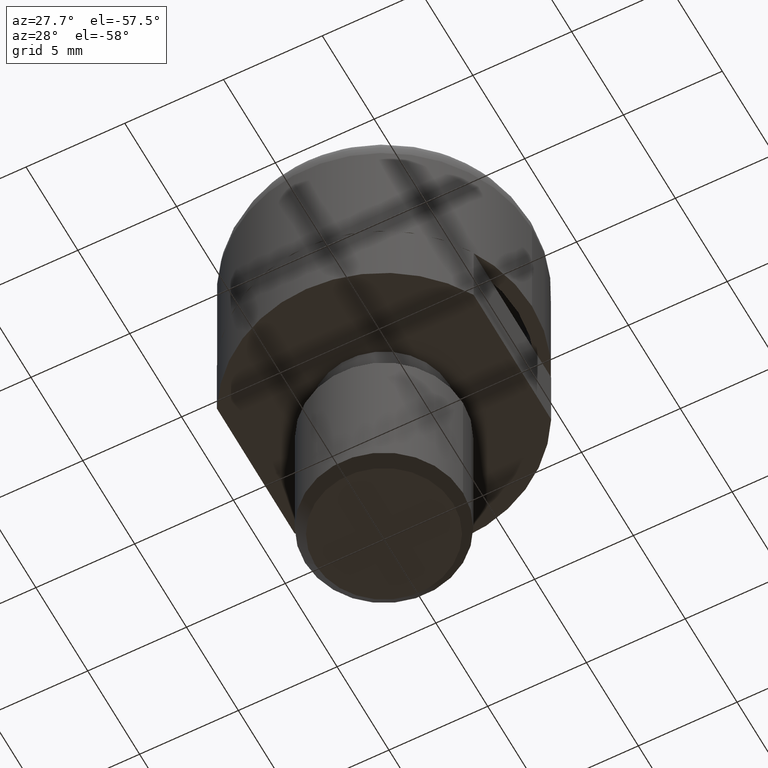
[diagram: clean part render]
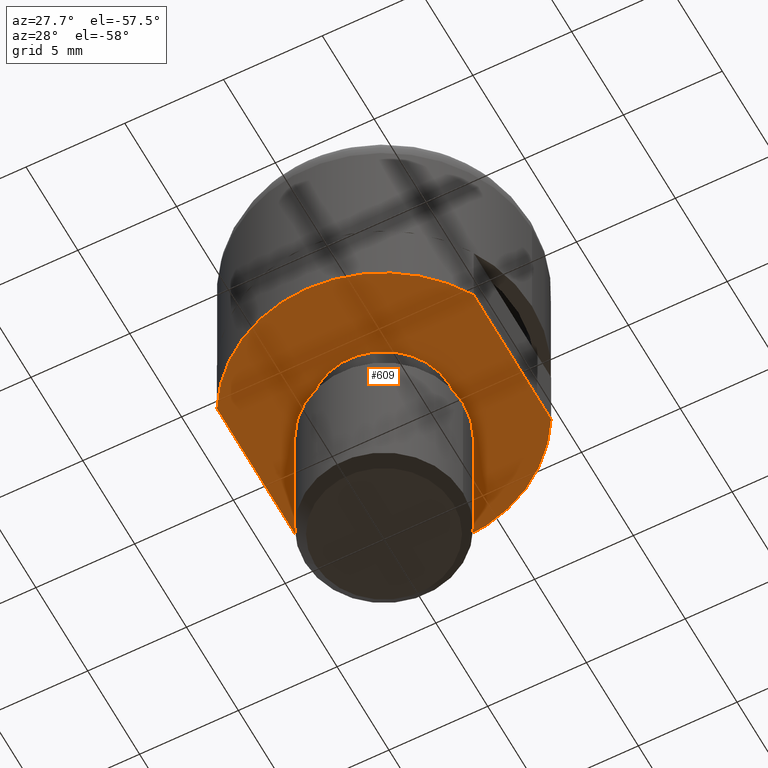
[diagram: same view with one face highlighted and labeled with its STEP entity id]
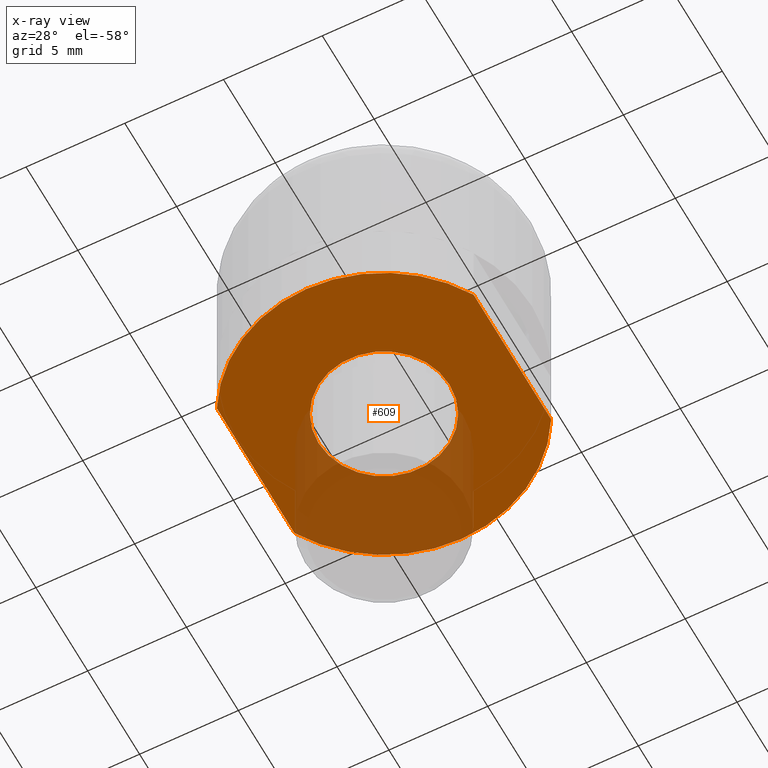
[diagram: x-ray of the same camera — body ghosted, the highlighted face saturated]
A machine part, auxiliary view. The second image highlights one B-rep face of the part: STEP entity #609.
The next image is the same camera in x-ray: the body ghosted, the highlighted face saturated — about 30% of this face is hidden behind the body in this view.
In plain terms, the highlighted planar face has unit normal (0, 0, 1).
Its self-contained STEP definition (entity closure, byte-faithful):
#7 = ORIENTED_EDGE ( 'NONE', *, *, #732, .F. ) ;
#10 = FACE_BOUND ( 'NONE', #520, .T. ) ;
#21 = CARTESIAN_POINT ( 'NONE',  ( 0.0000000000000000000, 0.0000000000000000000, -3.500000000000000000 ) ) ;
#22 = VECTOR ( 'NONE', #711, 1000.000000000000000 ) ;
#23 = EDGE_LOOP ( 'NONE', ( #506, #886, #7, #740 ) ) ;
#37 = VERTEX_POINT ( 'NONE', #801 ) ;
#68 = EDGE_CURVE ( 'NONE', #208, #514, #271, .T. ) ;
#77 = ORIENTED_EDGE ( 'NONE', *, *, #817, .F. ) ;
#115 = DIRECTION ( 'NONE',  ( -0.0000000000000000000, -0.0000000000000000000, -1.000000000000000000 ) ) ;
#179 = CIRCLE ( 'NONE', #672, 3.323500000001154800 ) ;
#208 = VERTEX_POINT ( 'NONE', #306 ) ;
#218 = LINE ( 'NONE', #424, #22 ) ;
#246 = CIRCLE ( 'NONE', #363, 3.323500000001154800 ) ;
#255 = CARTESIAN_POINT ( 'NONE',  ( 0.0000000000000000000, 0.0000000000000000000, -3.500000000000000000 ) ) ;
#267 = EDGE_CURVE ( 'NONE', #360, #291, #827, .T. ) ;
#271 = CIRCLE ( 'NONE', #690, 7.500000000000000000 ) ;
#291 = VERTEX_POINT ( 'NONE', #482 ) ;
#306 = CARTESIAN_POINT ( 'NONE',  ( 6.500000000000000000, -3.741657386773955100, -3.499999999999950300 ) ) ;
#313 = ORIENTED_EDGE ( 'NONE', *, *, #364, .F. ) ;
#322 = AXIS2_PLACEMENT_3D ( 'NONE', #760, #642, #929 ) ;
#333 = DIRECTION ( 'NONE',  ( 1.000000000000000000, 0.0000000000000000000, 0.0000000000000000000 ) ) ;
#360 = VERTEX_POINT ( 'NONE', #366 ) ;
#363 = AXIS2_PLACEMENT_3D ( 'NONE', #255, #852, #333 ) ;
#364 = EDGE_CURVE ( 'NONE', #37, #948, #179, .T. ) ;
#366 = CARTESIAN_POINT ( 'NONE',  ( -6.500000000000000000, 3.741657386773945300, -3.499999999999950300 ) ) ;
#376 = CARTESIAN_POINT ( 'NONE',  ( -3.323500000001154800, 0.0000000000000000000, -3.500000000000000000 ) ) ;
#422 = DIRECTION ( 'NONE',  ( 1.000000000000000000, 0.0000000000000000000, 0.0000000000000000000 ) ) ;
#424 = CARTESIAN_POINT ( 'NONE',  ( 6.500000000000000000, -3.741657386773940000, -3.499999999999950300 ) ) ;
#441 = VECTOR ( 'NONE', #633, 1000.000000000000000 ) ;
#470 = PLANE ( 'NONE',  #686 ) ;
#482 = CARTESIAN_POINT ( 'NONE',  ( 6.500000000000000000, 3.741657386773960000, -3.499999999999950300 ) ) ;
#506 = ORIENTED_EDGE ( 'NONE', *, *, #784, .F. ) ;
#514 = VERTEX_POINT ( 'NONE', #539 ) ;
#520 = EDGE_LOOP ( 'NONE', ( #77, #313 ) ) ;
#535 = DIRECTION ( 'NONE',  ( 1.000000000000000000, 0.0000000000000000000, 0.0000000000000000000 ) ) ;
#539 = CARTESIAN_POINT ( 'NONE',  ( -6.500000000000000000, -3.741657386773940000, -3.499999999999950300 ) ) ;
#585 = FACE_OUTER_BOUND ( 'NONE', #23, .T. ) ;
#609 = ADVANCED_FACE ( 'NONE', ( #10, #585 ), #470, .F. ) ;
#633 = DIRECTION ( 'NONE',  ( -0.0000000000000000000, -1.000000000000000000, -0.0000000000000000000 ) ) ;
#642 = DIRECTION ( 'NONE',  ( -0.0000000000000000000, -0.0000000000000000000, -1.000000000000000000 ) ) ;
#672 = AXIS2_PLACEMENT_3D ( 'NONE', #768, #763, #714 ) ;
#686 = AXIS2_PLACEMENT_3D ( 'NONE', #21, #775, #535 ) ;
#690 = AXIS2_PLACEMENT_3D ( 'NONE', #928, #115, #422 ) ;
#711 = DIRECTION ( 'NONE',  ( -0.0000000000000000000, 1.000000000000000000, -0.0000000000000000000 ) ) ;
#714 = DIRECTION ( 'NONE',  ( 1.000000000000000000, 0.0000000000000000000, 0.0000000000000000000 ) ) ;
#721 = LINE ( 'NONE', #904, #441 ) ;
#732 = EDGE_CURVE ( 'NONE', #360, #514, #721, .T. ) ;
#740 = ORIENTED_EDGE ( 'NONE', *, *, #267, .T. ) ;
#760 = CARTESIAN_POINT ( 'NONE',  ( 0.0000000000000000000, 0.0000000000000000000, -3.499999999999950300 ) ) ;
#763 = DIRECTION ( 'NONE',  ( -0.0000000000000000000, -0.0000000000000000000, -1.000000000000000000 ) ) ;
#768 = CARTESIAN_POINT ( 'NONE',  ( 0.0000000000000000000, 0.0000000000000000000, -3.500000000000000000 ) ) ;
#775 = DIRECTION ( 'NONE',  ( 0.0000000000000000000, 0.0000000000000000000, 1.000000000000000000 ) ) ;
#784 = EDGE_CURVE ( 'NONE', #208, #291, #218, .T. ) ;
#801 = CARTESIAN_POINT ( 'NONE',  ( 3.323500000001154800, 4.070113636967642500E-016, -3.500000000000000000 ) ) ;
#817 = EDGE_CURVE ( 'NONE', #948, #37, #246, .T. ) ;
#827 = CIRCLE ( 'NONE', #322, 7.500000000000000000 ) ;
#852 = DIRECTION ( 'NONE',  ( -0.0000000000000000000, -0.0000000000000000000, -1.000000000000000000 ) ) ;
#886 = ORIENTED_EDGE ( 'NONE', *, *, #68, .T. ) ;
#904 = CARTESIAN_POINT ( 'NONE',  ( -6.500000000000000000, 3.741657386773940000, -3.499999999999950300 ) ) ;
#928 = CARTESIAN_POINT ( 'NONE',  ( 0.0000000000000000000, 0.0000000000000000000, -3.499999999999950300 ) ) ;
#929 = DIRECTION ( 'NONE',  ( 1.000000000000000000, -8.881784197001252300E-016, 0.0000000000000000000 ) ) ;
#948 = VERTEX_POINT ( 'NONE', #376 ) ;